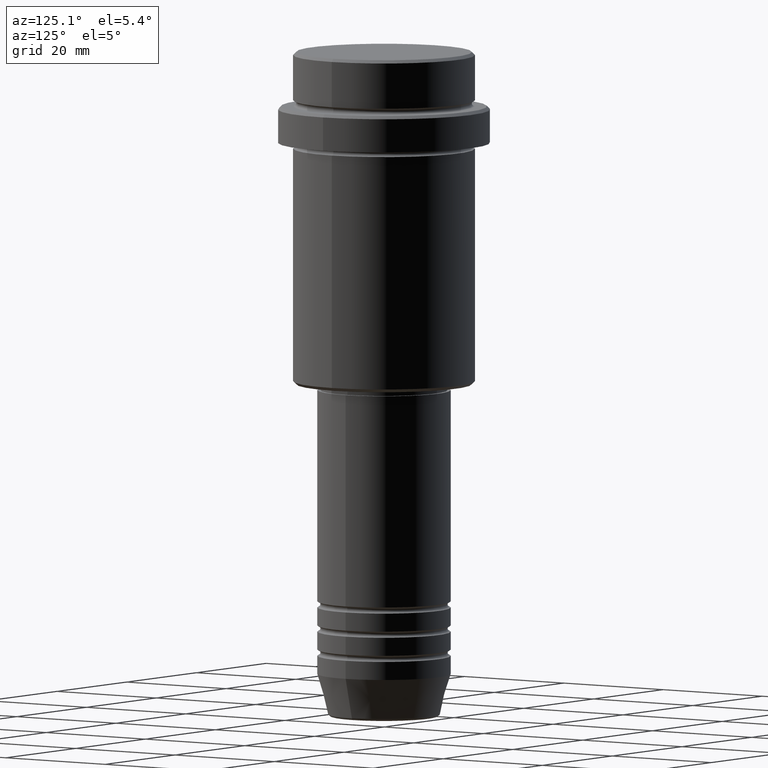
[diagram: clean part render]
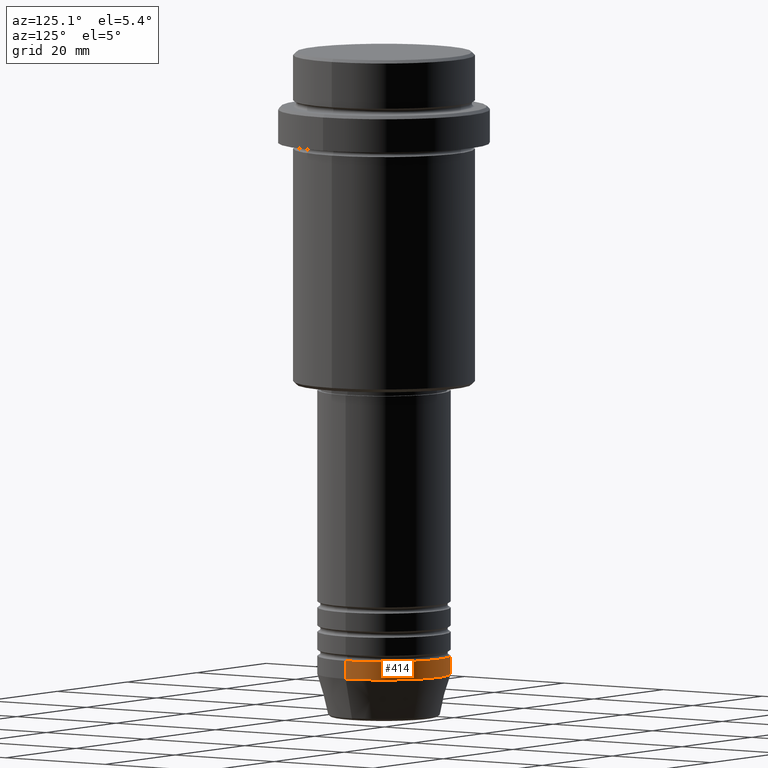
[diagram: same view with one face highlighted and labeled with its STEP entity id]
A machine part, auxiliary view. The second image highlights one B-rep face of the part: STEP entity #414.
In plain terms, the highlighted cylindrical surface (partial cylindrical patch) has radius 11 mm, axis along (-0, -0, 1).
Its self-contained STEP definition (entity closure, byte-faithful):
#3 = CARTESIAN_POINT ( 'NONE',  ( 11.00000000000000000, 0.000000000000000000, 0.000000000000000000 ) ) ;
#51 = DIRECTION ( 'NONE',  ( -0.000000000000000000, -0.000000000000000000, 1.000000000000000000 ) ) ;
#117 = CARTESIAN_POINT ( 'NONE',  ( 11.00000000000000000, 0.000000000000000000, -103.0000000000000142 ) ) ;
#188 = CARTESIAN_POINT ( 'NONE',  ( -11.00000000000000000, 1.347111479062088405E-15, -100.0000000000000000 ) ) ;
#212 = ORIENTED_EDGE ( 'NONE', *, *, #939, .F. ) ;
#255 = VERTEX_POINT ( 'NONE', #867 ) ;
#278 = FACE_OUTER_BOUND ( 'NONE', #839, .T. ) ;
#313 = VECTOR ( 'NONE', #896, 1000.000000000000000 ) ;
#365 = ORIENTED_EDGE ( 'NONE', *, *, #1198, .F. ) ;
#414 = ADVANCED_FACE ( 'NONE', ( #278 ), #593, .T. ) ;
#428 = CIRCLE ( 'NONE', #676, 11.00000000000000000 ) ;
#458 = CARTESIAN_POINT ( 'NONE',  ( -11.00000000000000000, 1.347111479062088405E-15, 0.000000000000000000 ) ) ;
#487 = DIRECTION ( 'NONE',  ( 1.000000000000000000, 0.000000000000000000, 0.000000000000000000 ) ) ;
#552 = VERTEX_POINT ( 'NONE', #188 ) ;
#559 = CARTESIAN_POINT ( 'NONE',  ( -11.00000000000000000, 1.347111479062088405E-15, -103.0000000000000142 ) ) ;
#562 = CIRCLE ( 'NONE', #582, 11.00000000000000000 ) ;
#582 = AXIS2_PLACEMENT_3D ( 'NONE', #1253, #592, #487 ) ;
#592 = DIRECTION ( 'NONE',  ( -0.000000000000000000, -0.000000000000000000, 1.000000000000000000 ) ) ;
#593 = CYLINDRICAL_SURFACE ( 'NONE', #713, 11.00000000000000000 ) ;
#615 = DIRECTION ( 'NONE',  ( 1.000000000000000000, 0.000000000000000000, 0.000000000000000000 ) ) ;
#616 = DIRECTION ( 'NONE',  ( 1.000000000000000000, 0.000000000000000000, 0.000000000000000000 ) ) ;
#676 = AXIS2_PLACEMENT_3D ( 'NONE', #706, #711, #615 ) ;
#706 = CARTESIAN_POINT ( 'NONE',  ( 0.000000000000000000, 0.000000000000000000, -103.0000000000000142 ) ) ;
#711 = DIRECTION ( 'NONE',  ( -0.000000000000000000, -0.000000000000000000, 1.000000000000000000 ) ) ;
#713 = AXIS2_PLACEMENT_3D ( 'NONE', #1375, #51, #616 ) ;
#745 = VERTEX_POINT ( 'NONE', #559 ) ;
#837 = EDGE_CURVE ( 'NONE', #1152, #745, #428, .T. ) ;
#839 = EDGE_LOOP ( 'NONE', ( #1105, #1231, #212, #365 ) ) ;
#867 = CARTESIAN_POINT ( 'NONE',  ( 11.00000000000000000, 0.000000000000000000, -100.0000000000000000 ) ) ;
#883 = DIRECTION ( 'NONE',  ( -0.000000000000000000, -0.000000000000000000, 1.000000000000000000 ) ) ;
#896 = DIRECTION ( 'NONE',  ( -0.000000000000000000, -0.000000000000000000, 1.000000000000000000 ) ) ;
#939 = EDGE_CURVE ( 'NONE', #255, #552, #562, .T. ) ;
#989 = LINE ( 'NONE', #458, #1014 ) ;
#1014 = VECTOR ( 'NONE', #883, 1000.000000000000000 ) ;
#1105 = ORIENTED_EDGE ( 'NONE', *, *, #837, .T. ) ;
#1152 = VERTEX_POINT ( 'NONE', #117 ) ;
#1198 = EDGE_CURVE ( 'NONE', #1152, #255, #1324, .T. ) ;
#1224 = EDGE_CURVE ( 'NONE', #745, #552, #989, .T. ) ;
#1231 = ORIENTED_EDGE ( 'NONE', *, *, #1224, .T. ) ;
#1253 = CARTESIAN_POINT ( 'NONE',  ( 0.000000000000000000, 0.000000000000000000, -100.0000000000000000 ) ) ;
#1324 = LINE ( 'NONE', #3, #313 ) ;
#1375 = CARTESIAN_POINT ( 'NONE',  ( 0.000000000000000000, 0.000000000000000000, 0.000000000000000000 ) ) ;